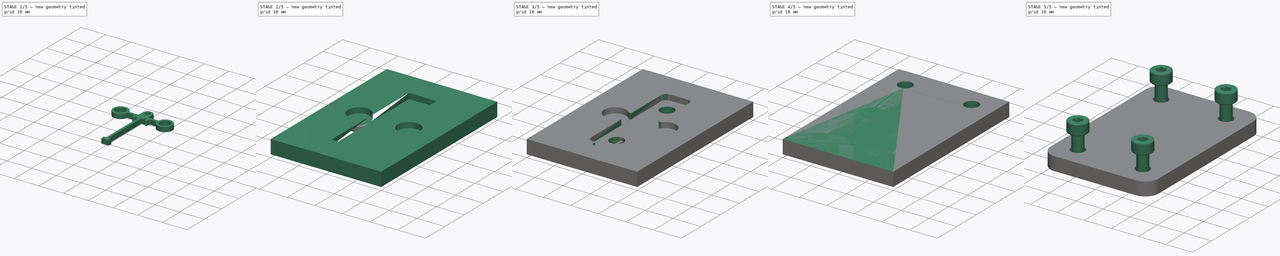
[diagram: build sequence overview — one tinted view per stage of 5, left to right]
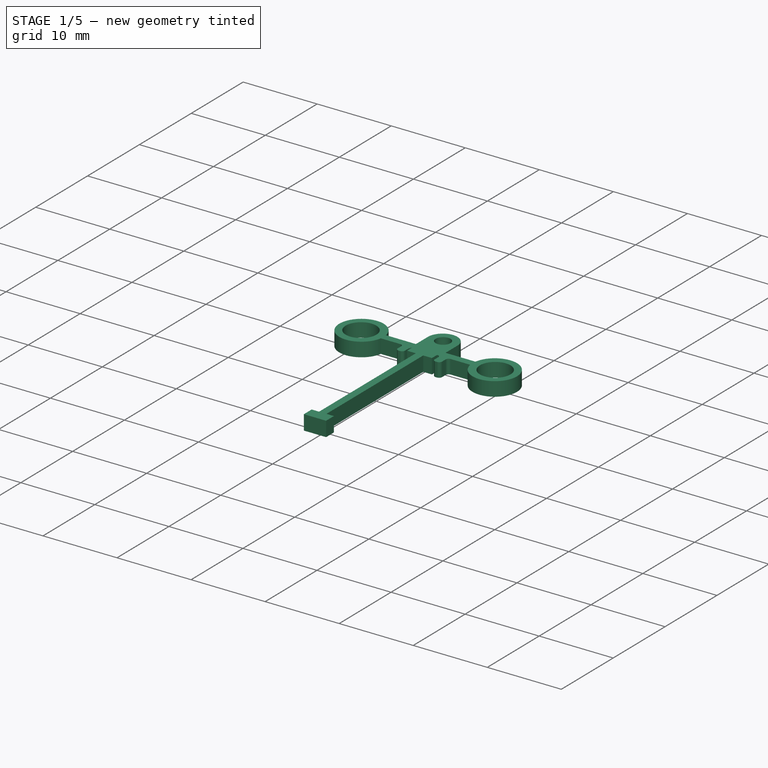
[diagram: stage 1 of 5 — iso view after this stage's code; geometry added in this stage tinted green]
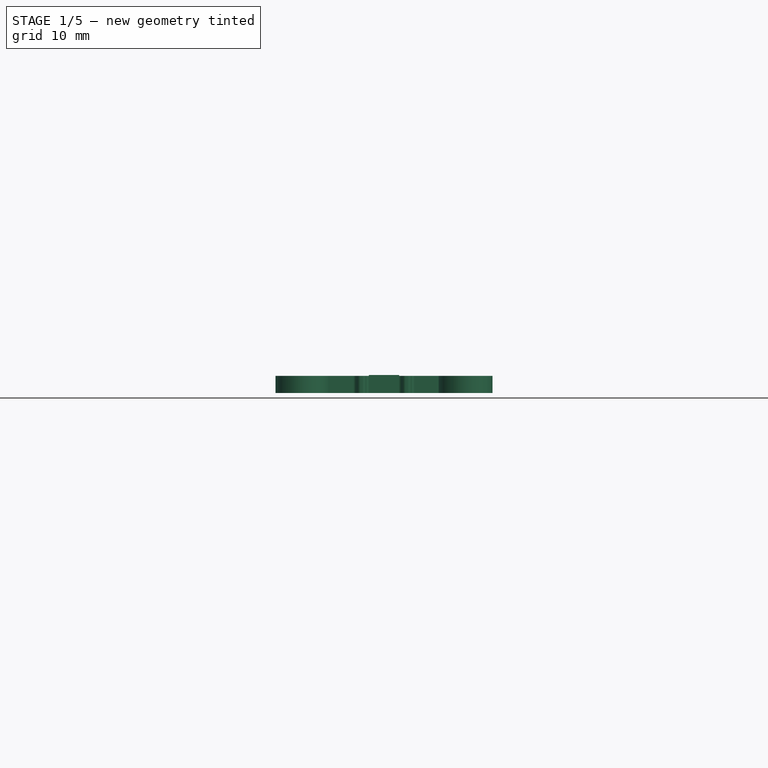
[diagram: stage 1 of 5 — front view after this stage's code; geometry added in this stage tinted green]
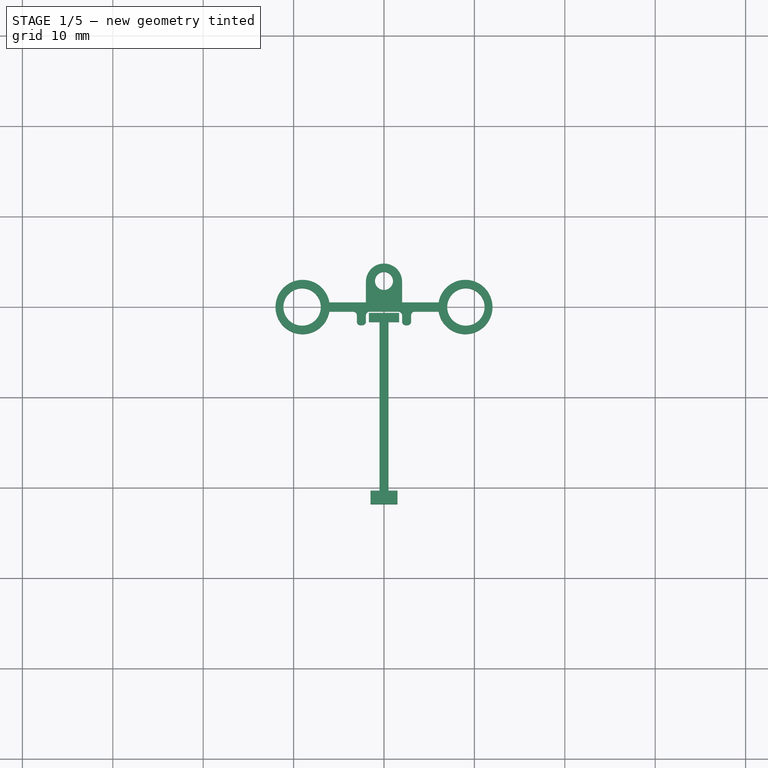
[diagram: stage 1 of 5 — top view after this stage's code; geometry added in this stage tinted green]
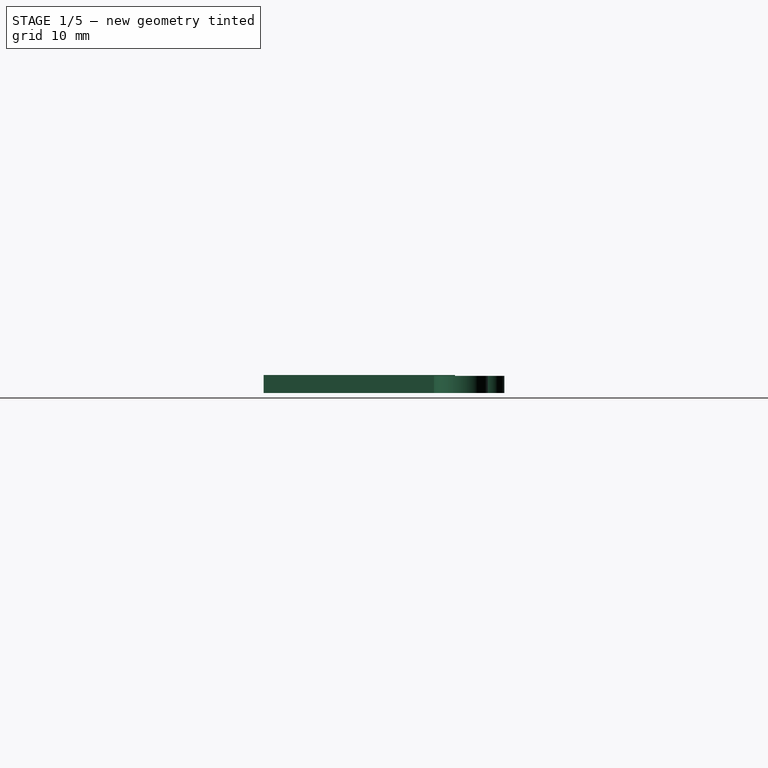
[diagram: stage 1 of 5 — right view after this stage's code; geometry added in this stage tinted green]
FCSTD DOCUMENT  (FreeCAD 0.19R24415 (Git))
Label: tiny_flow_meter
License: All rights reserved
LicenseURL: http://en.wikipedia.org/wiki/All_rights_reserved
objects: Sketcher::SketchObject×14, PartDesign::Pocket×12, PartDesign::Fillet×6, PartDesign::Pad×4, Part::FeaturePython×4, PartDesign::Body×4, PartDesign::Mirrored×2
note: 68 computed .brp shape members not serialized (recipe doc carries the construction recipe); baked Part::Feature solids carry a one-line shape summary decoded from their .brp

FEATURE [Sketcher::SketchObject] Sketch007
  FullyConstrained = true
  MapMode = 5
  Support = -> [XY_Plane001]
  sketch-geometry (16):
    g0: ArcOfCircle CenterX=9 CenterY=-7e-16 CenterZ=0 NormalX=0 NormalY=0 NormalZ=1 AngleXU=0 Radius=3 StartAngle=3.30904 EndAngle=9.25733
    g1: ArcOfCircle CenterX=-9 CenterY=-7e-16 CenterZ=0 NormalX=0 NormalY=0 NormalZ=1 AngleXU=0 Radius=3 StartAngle=0.167448 EndAngle=6.11574
    g2: LineSegment StartX=-6.04196 StartY=0.5 StartZ=0 EndX=-1.9996 EndY=0.5 EndZ=0
    g3: LineSegment StartX=-6.04196 StartY=-0.5 StartZ=0 EndX=-3 EndY=-0.5 EndZ=0
    g4: LineSegment StartX=-3 StartY=-0.5 StartZ=0 EndX=-3 EndY=-2 EndZ=0
    g5: LineSegment StartX=-3 StartY=-2 StartZ=0 EndX=-2 EndY=-2 EndZ=0
    g6: LineSegment StartX=-2 StartY=-2 StartZ=0 EndX=-2 EndY=-0.5 EndZ=0
    g7: LineSegment StartX=2 StartY=-0.5 StartZ=0 EndX=2 EndY=-2 EndZ=0
    g8: LineSegment StartX=2 StartY=-2 StartZ=0 EndX=3 EndY=-2 EndZ=0
    g9: LineSegment StartX=3 StartY=-2 StartZ=0 EndX=3 EndY=-0.5 EndZ=0
    g10: LineSegment StartX=-2 StartY=-0.5 StartZ=0 EndX=2 EndY=-0.5 EndZ=0
    g11: LineSegment StartX=3 StartY=-0.5 StartZ=0 EndX=6.04196 EndY=-0.5 EndZ=0
    g12: ArcOfCircle CenterX=0 CenterY=2.8 CenterZ=0 NormalX=0 NormalY=0 NormalZ=1 AngleXU=0 Radius=2 StartAngle=0.0200013 EndAngle=3.12159
    g13: LineSegment StartX=-1.9996 StartY=2.84 StartZ=0 EndX=-1.9996 EndY=0.5 EndZ=0
    g14: LineSegment StartX=1.9996 StartY=2.84 StartZ=0 EndX=1.9996 EndY=0.5 EndZ=0
    g15: LineSegment StartX=1.9996 StartY=0.5 StartZ=0 EndX=6.04196 EndY=0.5 EndZ=0
  constraints (47):
    c: Diameter(g0) = 6
    c: Equal(g1,g0)
    c: Symmetric(g1,g0,g-2)
    c: DistanceX(g-1,g0) = 9
    c: Horizontal(g2)
    c: Horizontal(g3)
    c: Vertical(g4)
    c: Coincident(g5,g4)
    c: Horizontal(g5)
    c: Coincident(g6,g5)
    c: Vertical(g6)
    c: Vertical(g7)
    c: Coincident(g8,g7)
    c: Horizontal(g8)
    c: Coincident(g9,g8)
    c: PointOnObject(g9,g3)
    c: Vertical(g9)
    c: DistanceX(g5,g5) = 1
    c: Equal(g5,g8)
    c: DistanceY(g9,g9) = 1.5
    c: Equal(g9,g4)
    c: Symmetric(g6,g7,g-2)
    c: DistanceX(g5,g7) = 4
    c: Coincident(g3,g4)
    c: Coincident(g10,g6)
    c: Tangent(g3,g10)
    c: PointOnObject(g10,g7)
    c: PointOnObject(g11,g9)
    c: Tangent(g10,g11)
    c: Symmetric(g2,g3,g-1)
    c: Coincident(g1,g2)
    c: Coincident(g1,g3)
    c: Coincident(g0,g11)
    c: Coincident(g0,g15)
    c: DistanceY(g0,g0) = 1
    c: PointOnObject(g12,g-2)
    c: Diameter(g12) = 4
    c: DistanceY(g-1,g12) = 2.8
    c: Vertical(g13)
    c: Vertical(g14)
    c: Equal(g13,g14)
    c: Coincident(g12,g14)
    c: Coincident(g12,g13)
    c: DistanceY(g14,g14) = 2.34
    c: Coincident(g2,g13)
    c: Coincident(g15,g14)
    c: Tangent(g2,g15)
FEATURE [PartDesign::Pad] Pad001
  Direction = (1,1,1)
  Length = 2
  Length2 = 100
  Profile = -> Sketch007
  Type = 0
FEATURE [Sketcher::SketchObject] Sketch008
  FullyConstrained = true
  MapMode = 5
  Placement = pos=(0,0,2) rot=(0,0,1;0rad)
  Support = -> [Pad001]
  sketch-geometry (1):
    g0: Circle CenterX=0 CenterY=2.88 CenterZ=0 NormalX=0 NormalY=0 NormalZ=1 AngleXU=0 Radius=1
  constraints (3):
    c: PointOnObject(g0,g-2)
    c: Diameter(g0) = 2
    c: DistanceY(g-1,g0) = 2.88
FEATURE [PartDesign::Pocket] Pocket006
  BaseFeature = -> Pad001
  Length = 5
  Length2 = 100
  Profile = -> Sketch008
  Type = 0
FEATURE [Sketcher::SketchObject] Sketch009
  FullyConstrained = true
  MapMode = 5
  Support = -> [XY_Plane002]
  sketch-geometry (12):
    g0: LineSegment StartX=-1.675 StartY=-0.66 StartZ=0 EndX=1.675 EndY=-0.66 EndZ=0
    g1: LineSegment StartX=-1.675 StartY=-0.66 StartZ=0 EndX=-1.675 EndY=-1.66 EndZ=0
    g2: LineSegment StartX=1.675 StartY=-0.66 StartZ=0 EndX=1.675 EndY=-1.66 EndZ=0
    g3: LineSegment StartX=-0.5 StartY=-1.66 StartZ=0 EndX=-0.5 EndY=-20.32 EndZ=0
    g4: LineSegment StartX=0.5 StartY=-1.66 StartZ=0 EndX=0.5 EndY=-20.32 EndZ=0
    g5: LineSegment StartX=1.675 StartY=-1.66 StartZ=0 EndX=0.5 EndY=-1.66 EndZ=0
    g6: LineSegment StartX=-0.5 StartY=-1.66 StartZ=0 EndX=-1.675 EndY=-1.66 EndZ=0
    g7: LineSegment StartX=-1.5 StartY=-21.82 StartZ=0 EndX=1.5 EndY=-21.82 EndZ=0
    g8: LineSegment StartX=-1.5 StartY=-21.82 StartZ=0 EndX=-1.5 EndY=-20.32 EndZ=0
    g9: LineSegment StartX=1.5 StartY=-21.82 StartZ=0 EndX=1.5 EndY=-20.32 EndZ=0
    g10: LineSegment StartX=-1.5 StartY=-20.32 StartZ=0 EndX=-0.5 EndY=-20.32 EndZ=0
    g11: LineSegment StartX=0.5 StartY=-20.32 StartZ=0 EndX=1.5 EndY=-20.32 EndZ=0
  constraints (33):
    c: Symmetric(g0,g0,g-2)
    c: Coincident(g1,g0)
    c: Vertical(g1)
    c: Coincident(g2,g0)
    c: Vertical(g2)
    c: Equal(g1,g2)
    c: DistanceY(g2,g2) = 1
    c: Vertical(g3)
    c: Vertical(g4)
    c: Coincident(g5,g2)
    c: Coincident(g5,g4)
    c: Horizontal(g5)
    c: Coincident(g6,g3)
    c: Coincident(g6,g1)
    c: DistanceX(g3,g4) = 1
    c: Symmetric(g3,g4,g-2)
    c: Equal(g4,g3)
    c: Symmetric(g7,g7,g-2)
    c: DistanceX(g7,g7) = 3
    c: Coincident(g8,g7)
    c: Vertical(g8)
    c: Coincident(g9,g7)
    c: Vertical(g9)
    c: Coincident(g10,g8)
    c: Horizontal(g10)
    c: Equal(g8,g9)
    c: DistanceY(g9,g9) = 1.5
    c: Coincident(g3,g10)
    c: Coincident(g11,g4)
    c: Coincident(g11,g9)
    c: DistanceY(g0,g-1) = 0.66
    c: DistanceY(g4,g4) = 18.66
    c: DistanceX(g0,g0) = 3.35
FEATURE [PartDesign::Pad] Pad002
  Direction = (1,1,1)
  Length = 2
  Length2 = 100
  Profile = -> Sketch009
  Type = 0
FEATURE [Sketcher::SketchObject] Sketch010
  FullyConstrained = true
  MapMode = 5
  Placement = pos=(0,0,2) rot=(0,0,1;0rad)
  Support = -> [Pocket006]
  sketch-geometry (2):
    g0: Circle CenterX=-9.06 CenterY=0 CenterZ=0 NormalX=0 NormalY=0 NormalZ=1 AngleXU=0 Radius=2.07
    g1: Circle CenterX=9.06 CenterY=0 CenterZ=0 NormalX=0 NormalY=0 NormalZ=1 AngleXU=0 Radius=2.07
  constraints (5):
    c: PointOnObject(g0,g-1)
    c: Symmetric(g0,g1,g-2)
    c: Equal(g0,g1)
    c: Diameter(g1) = 4.14
    c: DistanceX(g-1,g1) = 9.06
FEATURE [PartDesign::Pocket] Pocket007
  BaseFeature = -> Pocket006
  Length = 2
  Length2 = 100
  Profile = -> Sketch010
  Type = 0
FEATURE [PartDesign::Fillet] Fillet002
  Base = -> Pocket007 [Edge44,Edge46,Edge8,Edge48,Edge50,Edge52,Edge54,Edge53]
  BaseFeature = -> Pocket007
  Radius = 0.4
  SupportTransform = false
FEATURE [PartDesign::Body] Body002  label="pivit"
  Group = -> [Sketch009,Pad002,Fillet003,Pocket010]
  Origin = -> Origin002
  Placement = pos=(0,0,3) rot=(0,0,1;0rad)
  Tip = -> Pocket010
FEATURE [PartDesign::Pocket] Pocket011
  BaseFeature = -> Fillet002
  Length = 0.1
  Length2 = 100
  Profile = -> Fillet002 [Face5]
  Type = 0
FEATURE [PartDesign::Body] Body001  label="actor"
  Group = -> [Sketch007,Pad001,Sketch008,Pocket006,Sketch010,Pocket007,Fillet002,Pocket011]
  Origin = -> Origin001
  Placement = pos=(0,0,3) rot=(0,0,1;0rad)
  Tip = -> Pocket011
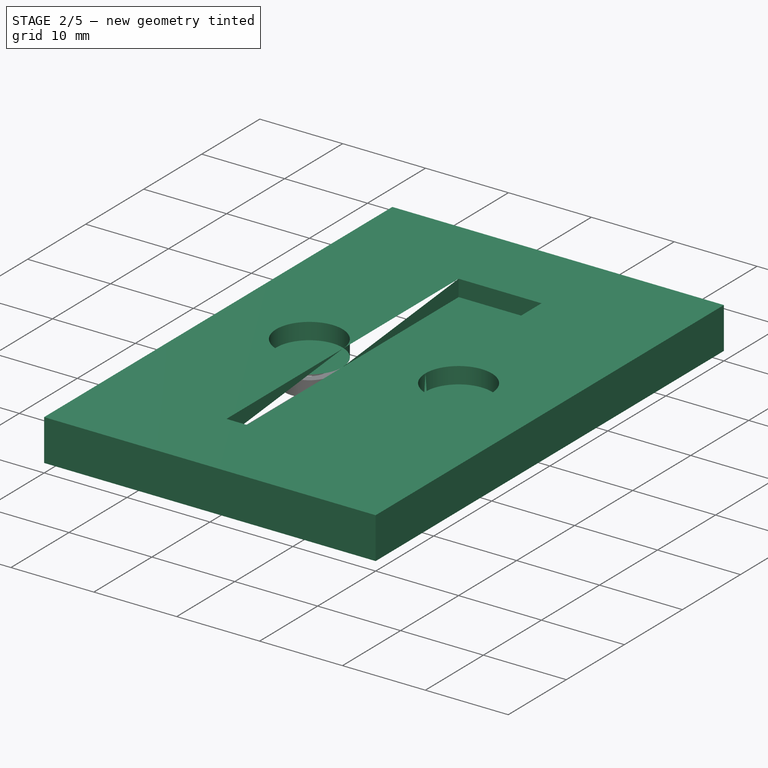
[diagram: stage 2 of 5 — iso view after this stage's code; geometry added in this stage tinted green]
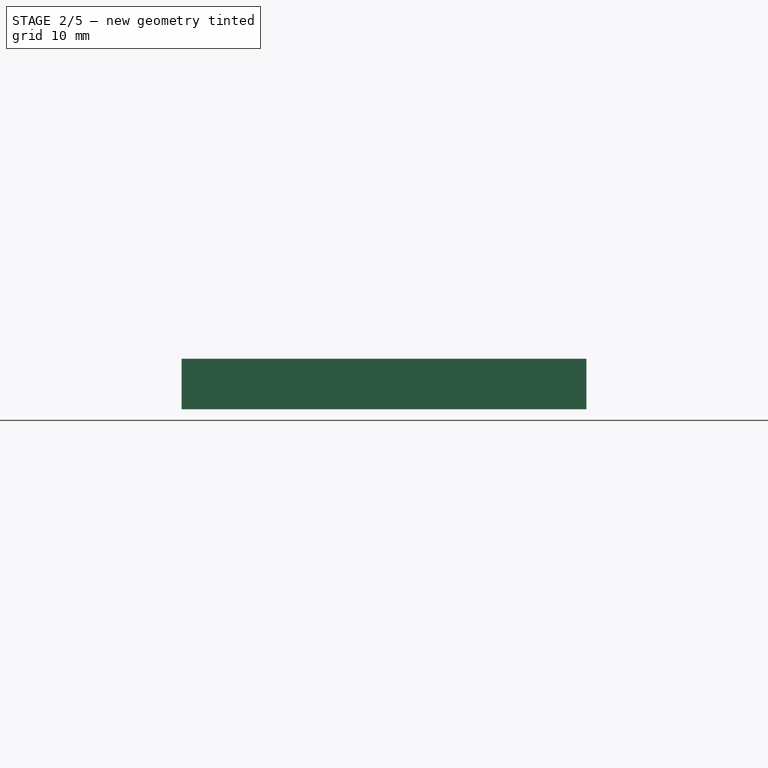
[diagram: stage 2 of 5 — front view after this stage's code; geometry added in this stage tinted green]
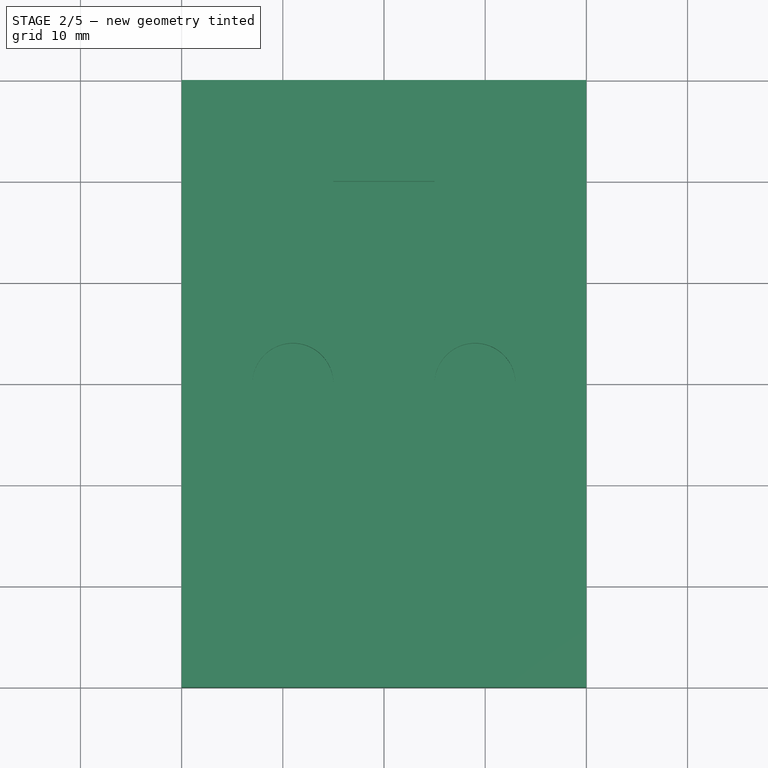
[diagram: stage 2 of 5 — top view after this stage's code; geometry added in this stage tinted green]
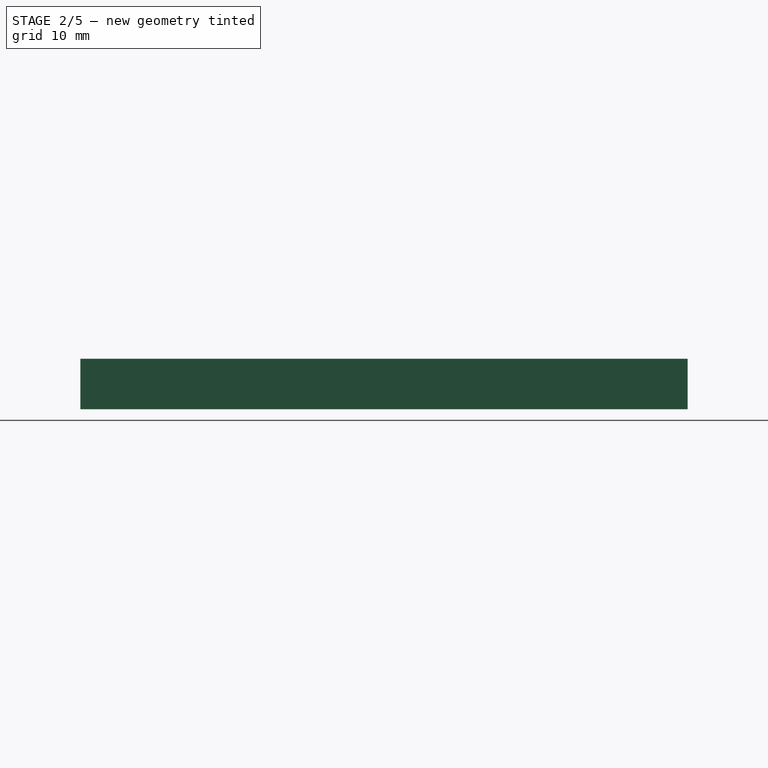
[diagram: stage 2 of 5 — right view after this stage's code; geometry added in this stage tinted green]
FEATURE [Sketcher::SketchObject] Sketch
  FullyConstrained = true
  MapMode = 5
  Support = -> [XY_Plane]
  sketch-geometry (4):
    g0: LineSegment StartX=-20 StartY=30 StartZ=0 EndX=20 EndY=30 EndZ=0
    g1: LineSegment StartX=20 StartY=30 StartZ=0 EndX=20 EndY=-30 EndZ=0
    g2: LineSegment StartX=20 StartY=-30 StartZ=0 EndX=-20 EndY=-30 EndZ=0
    g3: LineSegment StartX=-20 StartY=-30 StartZ=0 EndX=-20 EndY=30 EndZ=0
  constraints (10):
    c: Coincident(g0,g1)
    c: Coincident(g1,g2)
    c: Coincident(g2,g3)
    c: Coincident(g3,g0)
    c: Horizontal(g2)
    c: Vertical(g3)
    c: DistanceY(g1,g1) = 60
    c: DistanceX(g0,g0) = 40
    c: Symmetric(g0,g0,g-2)
    c: Symmetric(g0,g1,g-1)
FEATURE [PartDesign::Pad] Pad
  Direction = (1,1,1)
  Length = 5
  Length2 = 100
  Profile = -> Sketch
  Type = 0
FEATURE [Sketcher::SketchObject] Sketch001
  FullyConstrained = true
  MapMode = 5
  Placement = pos=(0,0,5) rot=(0,0,1;0rad)
  Support = -> [Pad]
  sketch-geometry (4):
    g0: LineSegment StartX=-5 StartY=20 StartZ=0 EndX=5 EndY=20 EndZ=0
    g1: LineSegment StartX=5 StartY=20 StartZ=0 EndX=5 EndY=-20 EndZ=0
    g2: LineSegment StartX=5 StartY=-20 StartZ=0 EndX=-5 EndY=-20 EndZ=0
    g3: LineSegment StartX=-5 StartY=-20 StartZ=0 EndX=-5 EndY=20 EndZ=0
  constraints (10):
    c: Coincident(g0,g1)
    c: Coincident(g1,g2)
    c: Coincident(g2,g3)
    c: Coincident(g3,g0)
    c: Horizontal(g0)
    c: Vertical(g3)
    c: DistanceX(g0,g0) = 10
    c: DistanceY(g1,g1) = 40
    c: Symmetric(g0,g1,g-1)
    c: Symmetric(g1,g2,g-2)
FEATURE [PartDesign::Pocket] Pocket
  BaseFeature = -> Pad
  Length = 2
  Length2 = 100
  Profile = -> Sketch001
  Type = 0
FEATURE [Sketcher::SketchObject] Sketch002
  FullyConstrained = true
  MapMode = 5
  Placement = pos=(0,0,5) rot=(0,0,1;0rad)
  Support = -> [Pocket]
  sketch-geometry (2):
    g0: Circle CenterX=9 CenterY=0 CenterZ=0 NormalX=0 NormalY=0 NormalZ=1 AngleXU=0 Radius=4
    g1: Circle CenterX=-9 CenterY=0 CenterZ=0 NormalX=0 NormalY=0 NormalZ=1 AngleXU=0 Radius=4
  constraints (5):
    c: PointOnObject(g0,g-1)
    c: Equal(g1,g0)
    c: Diameter(g0) = 8
    c: Symmetric(g1,g0,g-2)
    c: DistanceX(g1,g-1) = 9
FEATURE [PartDesign::Pocket] Pocket001
  BaseFeature = -> Pocket
  Length = 2
  Length2 = 100
  Profile = -> Sketch002
  Type = 0
FEATURE [PartDesign::Fillet] Fillet003
  Base = -> Pad002 [Edge2,Edge5,Edge8,Edge11,Edge14,Edge1,Edge32,Edge29,Edge26,Edge23,Edge20,Edge17]
  BaseFeature = -> Pad002
  Radius = 0.4
  SupportTransform = false
FEATURE [PartDesign::Body] Body  label="base"
  Group = -> [Sketch,Pad,Sketch001,Pocket,Sketch002,Pocket001,Sketch003,Pocket002,Sketch004,Pocket003,Sketch005,Pocket004,Sketch006,Pocket005,Fillet,Fillet001,Sketch012,Pocket008,Mirrored,Fillet005]
  Origin = -> Origin
  Tip = -> Fillet005
FEATURE [PartDesign::Pocket] Pocket010
  BaseFeature = -> Fillet003
  Length = 0.1
  Length2 = 100
  Profile = -> Fillet003 [Face5]
  Type = 0
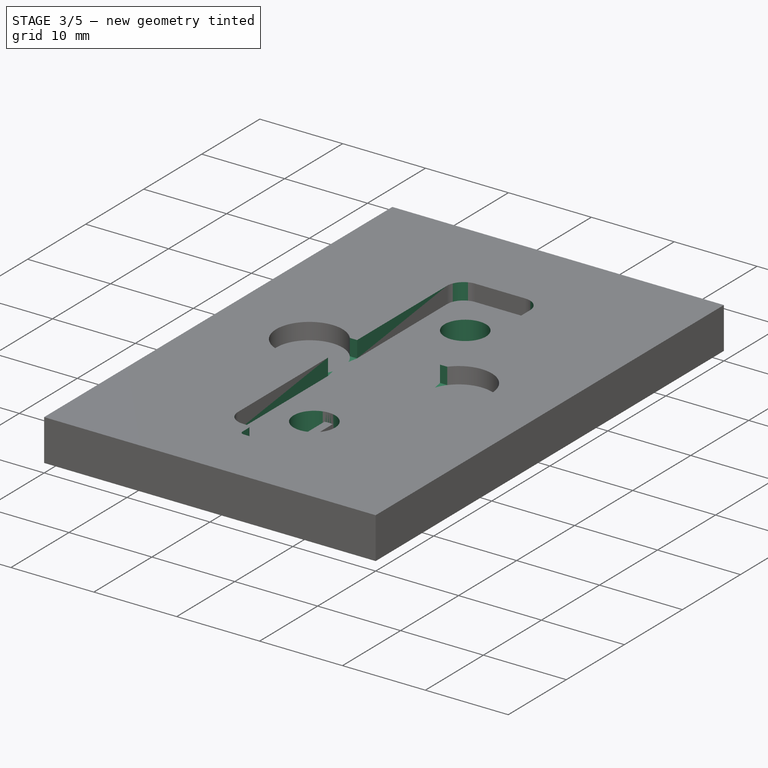
[diagram: stage 3 of 5 — iso view after this stage's code; geometry added in this stage tinted green]
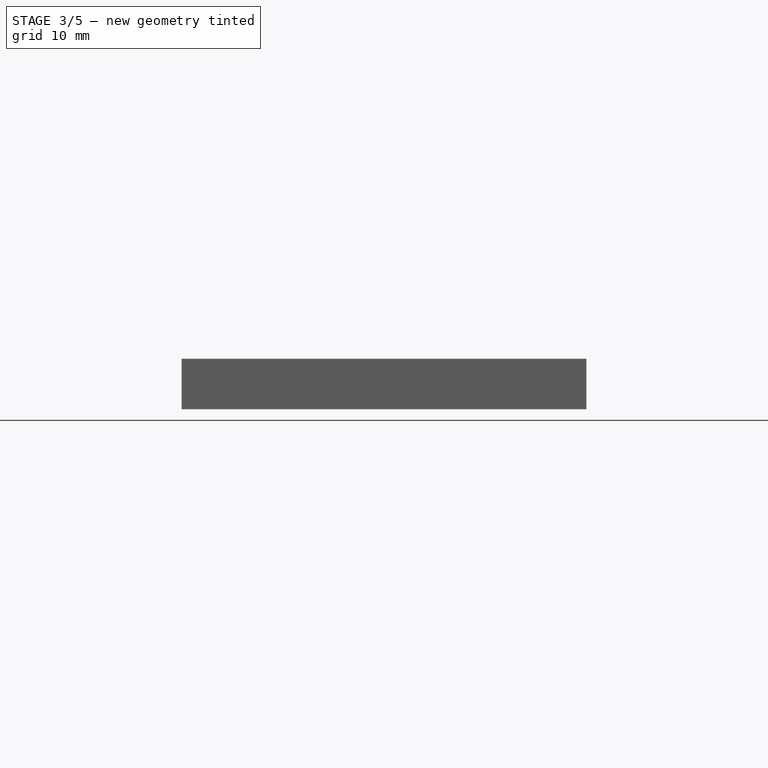
[diagram: stage 3 of 5 — front view after this stage's code; geometry added in this stage tinted green]
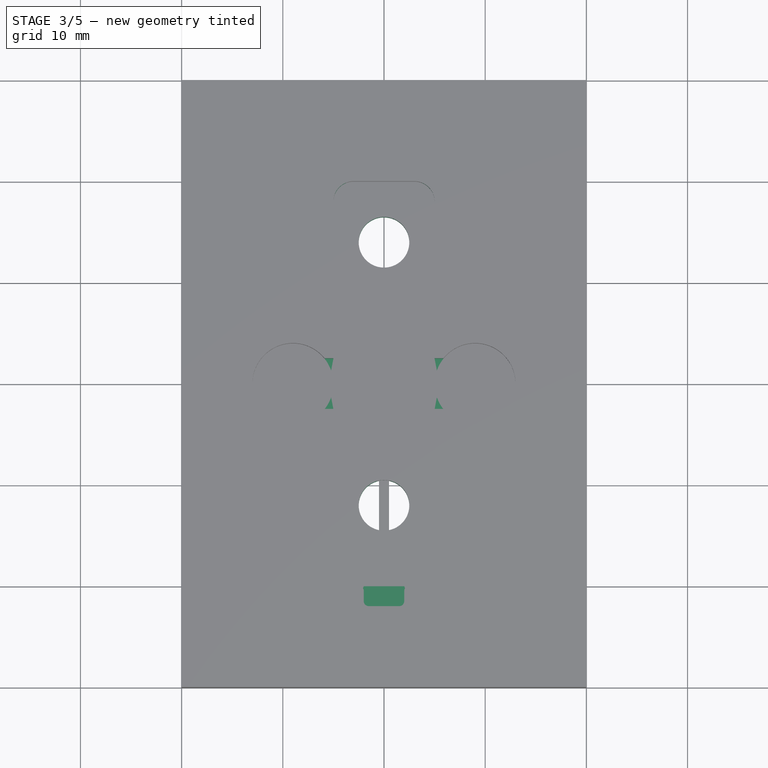
[diagram: stage 3 of 5 — top view after this stage's code; geometry added in this stage tinted green]
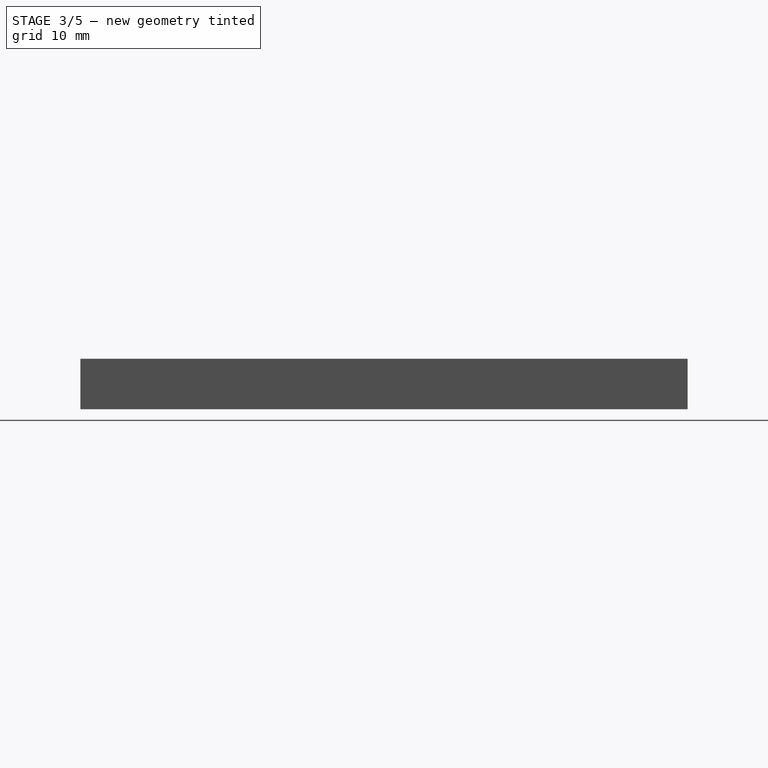
[diagram: stage 3 of 5 — right view after this stage's code; geometry added in this stage tinted green]
FEATURE [Sketcher::SketchObject] Sketch003
  FullyConstrained = true
  MapMode = 5
  Placement = pos=(0,0,5) rot=(0,0,1;0rad)
  Support = -> [Pocket001]
  sketch-geometry (4):
    g0: LineSegment StartX=-7.5 StartY=2.5 StartZ=0 EndX=7.5 EndY=2.5 EndZ=0
    g1: LineSegment StartX=7.5 StartY=2.5 StartZ=0 EndX=7.5 EndY=-2.5 EndZ=0
    g2: LineSegment StartX=7.5 StartY=-2.5 StartZ=0 EndX=-7.5 EndY=-2.5 EndZ=0
    g3: LineSegment StartX=-7.5 StartY=-2.5 StartZ=0 EndX=-7.5 EndY=2.5 EndZ=0
  constraints (10):
    c: Coincident(g0,g1)
    c: Coincident(g1,g2)
    c: Coincident(g2,g3)
    c: Coincident(g3,g0)
    c: Horizontal(g2)
    c: Vertical(g3)
    c: DistanceY(g1,g1) = 5
    c: Symmetric(g0,g1,g-1)
    c: DistanceX(g0,g0) = 15
    c: Symmetric(g0,g0,g-2)
FEATURE [PartDesign::Pocket] Pocket002
  BaseFeature = -> Pocket001
  Length = 2
  Length2 = 100
  Profile = -> Sketch003
  Type = 0
FEATURE [Sketcher::SketchObject] Sketch004
  FullyConstrained = true
  MapMode = 5
  Placement = pos=(0,0,3) rot=(0,0,1;0rad)
  Support = -> [Pocket002]
  sketch-geometry (1):
    g0: Circle CenterX=0 CenterY=-12 CenterZ=0 NormalX=0 NormalY=0 NormalZ=1 AngleXU=0 Radius=2.5
  constraints (3):
    c: PointOnObject(g0,g-2)
    c: Diameter(g0) = 5
    c: DistanceY(g0,g-1) = 12
FEATURE [PartDesign::Pocket] Pocket003
  BaseFeature = -> Pocket002
  Length = 5
  Length2 = 100
  Profile = -> Sketch004
  Type = 0
FEATURE [Sketcher::SketchObject] Sketch005
  FullyConstrained = true
  MapMode = 5
  Placement = pos=(0,0,5) rot=(0,0,1;0rad)
  Support = -> [Pocket003]
  sketch-geometry (4):
    g0: LineSegment StartX=-2 StartY=-18 StartZ=0 EndX=2 EndY=-18 EndZ=0
    g1: LineSegment StartX=2 StartY=-18 StartZ=0 EndX=2 EndY=-22 EndZ=0
    g2: LineSegment StartX=2 StartY=-22 StartZ=0 EndX=-2 EndY=-22 EndZ=0
    g3: LineSegment StartX=-2 StartY=-22 StartZ=0 EndX=-2 EndY=-18 EndZ=0
  constraints (11):
    c: Coincident(g0,g1)
    c: Coincident(g1,g2)
    c: Coincident(g2,g3)
    c: Coincident(g3,g0)
    c: Horizontal(g0)
    c: Vertical(g1)
    c: Vertical(g3)
    c: DistanceX(g2,g2) = 4
    c: Symmetric(g2,g1,g-2)
    c: Equal(g2,g1)
    c: DistanceY(g0,g-1) = 18
FEATURE [PartDesign::Pocket] Pocket004
  BaseFeature = -> Pocket003
  Length = 2
  Length2 = 100
  Profile = -> Sketch005
  Type = 0
FEATURE [Sketcher::SketchObject] Sketch006
  FullyConstrained = true
  MapMode = 5
  Placement = pos=(0,0,3) rot=(0,0,1;0rad)
  Support = -> [Pocket004]
  sketch-geometry (1):
    g0: Circle CenterX=0 CenterY=14 CenterZ=0 NormalX=0 NormalY=0 NormalZ=1 AngleXU=0 Radius=2.5
  constraints (3):
    c: PointOnObject(g0,g-2)
    c: Diameter(g0) = 5
    c: DistanceY(g-1,g0) = 14
FEATURE [PartDesign::Pocket] Pocket005
  BaseFeature = -> Pocket004
  Length = 3
  Length2 = 100
  Profile = -> Sketch006
  Type = 0
FEATURE [PartDesign::Fillet] Fillet
  Base = -> Pocket005 [Edge59,Edge61,Edge49,Edge39]
  BaseFeature = -> Pocket005
  Radius = 2
  SupportTransform = false
FEATURE [PartDesign::Fillet] Fillet001
  Base = -> Fillet [Edge41,Edge37,Edge33,Edge45]
  BaseFeature = -> Fillet
  Radius = 0.5
  SupportTransform = false
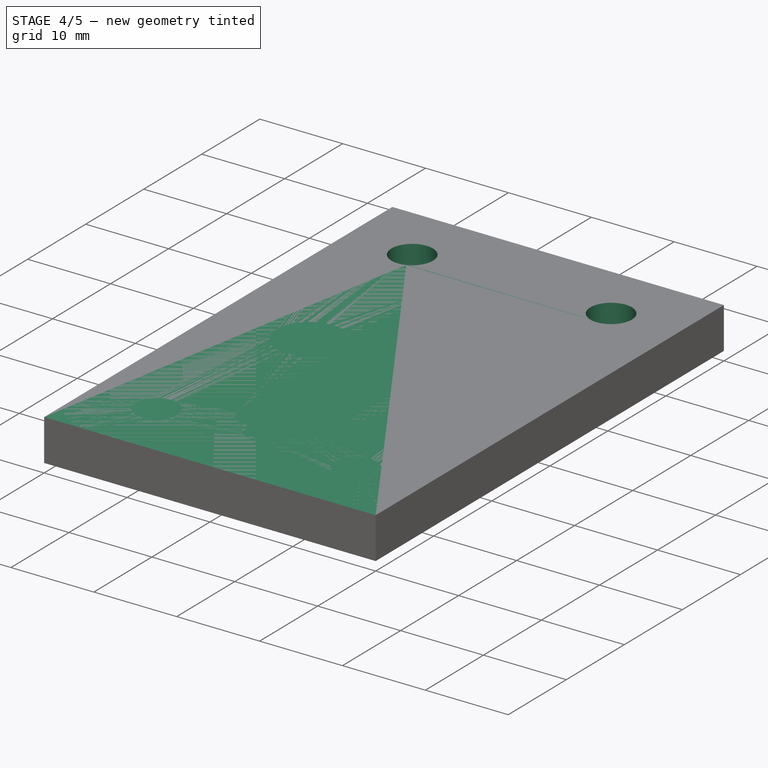
[diagram: stage 4 of 5 — iso view after this stage's code; geometry added in this stage tinted green]
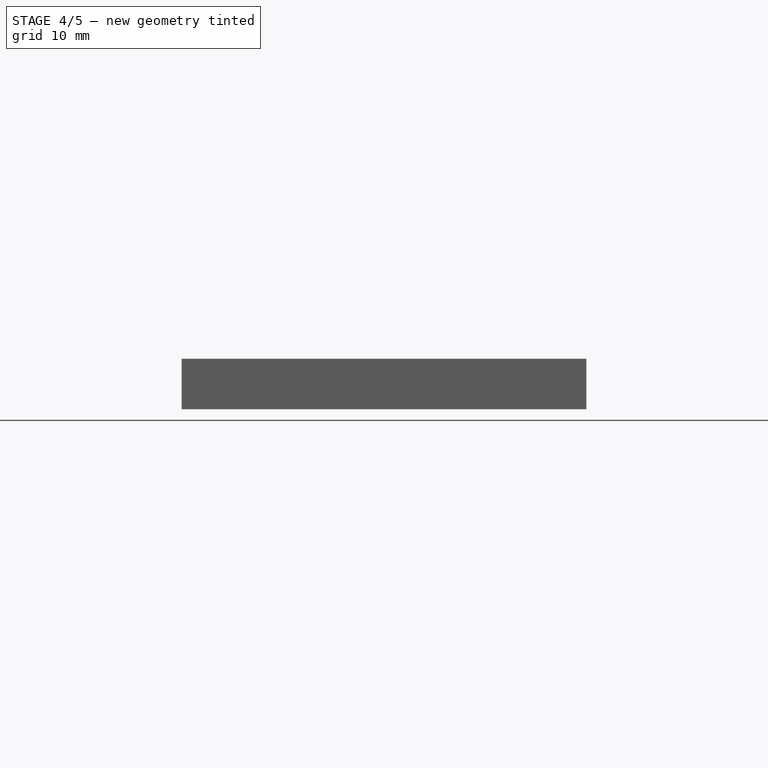
[diagram: stage 4 of 5 — front view after this stage's code; geometry added in this stage tinted green]
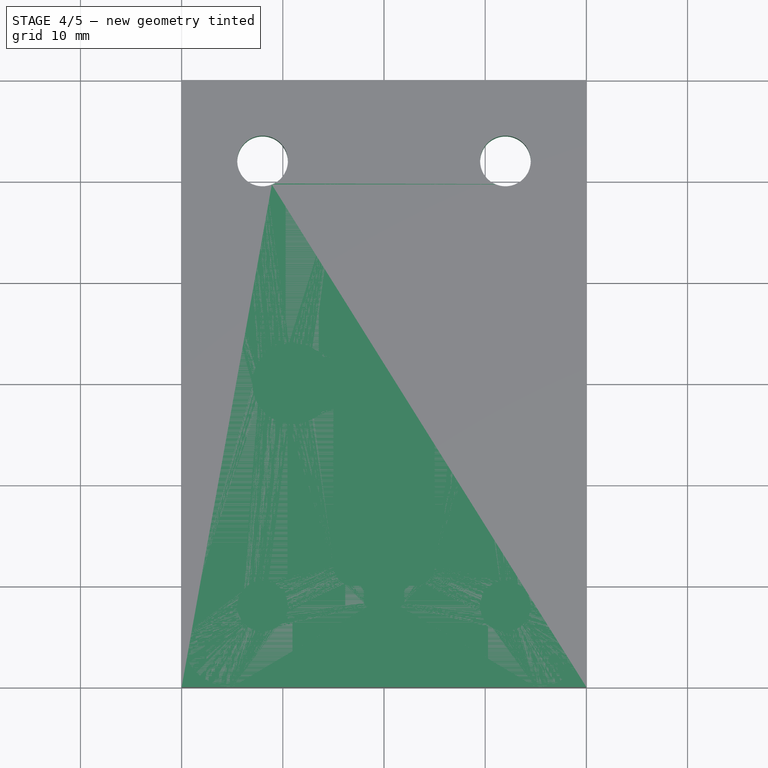
[diagram: stage 4 of 5 — top view after this stage's code; geometry added in this stage tinted green]
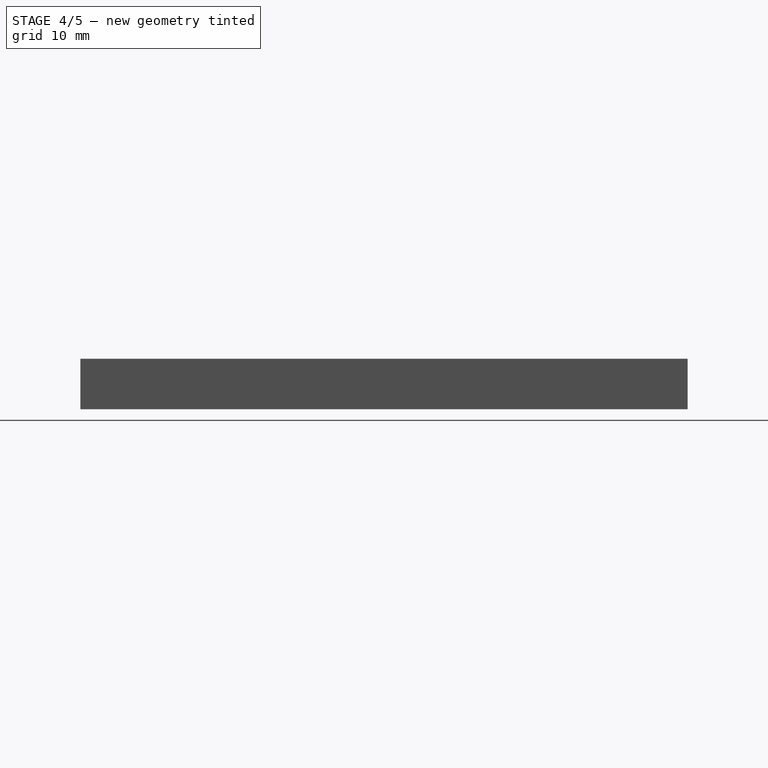
[diagram: stage 4 of 5 — right view after this stage's code; geometry added in this stage tinted green]
FEATURE [Sketcher::SketchObject] Sketch011
  FullyConstrained = true
  MapMode = 5
  sketch-geometry (4):
    g0: LineSegment StartX=-20 StartY=30 StartZ=0 EndX=20 EndY=30 EndZ=0
    g1: LineSegment StartX=20 StartY=30 StartZ=0 EndX=20 EndY=-30 EndZ=0
    g2: LineSegment StartX=20 StartY=-30 StartZ=0 EndX=-20 EndY=-30 EndZ=0
    g3: LineSegment StartX=-20 StartY=-30 StartZ=0 EndX=-20 EndY=30 EndZ=0
  constraints (10):
    c: Coincident(g0,g1)
    c: Coincident(g1,g2)
    c: Coincident(g2,g3)
    c: Coincident(g3,g0)
    c: Horizontal(g2)
    c: Vertical(g3)
    c: DistanceY(g1,g1) = 60
    c: DistanceX(g0,g0) = 40
    c: Symmetric(g0,g0,g-2)
    c: Symmetric(g0,g1,g-1)
FEATURE [PartDesign::Pad] Pad003
  Direction = (1,1,1)
  Length = 5
  Length2 = 100
  Profile = -> Sketch011
  Type = 0
FEATURE [Sketcher::SketchObject] Sketch012
  FullyConstrained = true
  MapMode = 5
  Placement = pos=(0,0,5) rot=(0,0,1;0rad)
  Support = -> [Fillet001]
  sketch-geometry (2):
    g0: Circle CenterX=-12 CenterY=22 CenterZ=0 NormalX=0 NormalY=0 NormalZ=1 AngleXU=0 Radius=2.5
    g1: Circle CenterX=12 CenterY=22 CenterZ=0 NormalX=0 NormalY=0 NormalZ=1 AngleXU=0 Radius=2.5
  constraints (5):
    c: Diameter(g0) = 5
    c: DistanceY(g-1,g0) = 22
    c: DistanceX(g0,g-1) = 12
    c: Equal(g0,g1)
    c: Symmetric(g1,g0,g-2)
FEATURE [PartDesign::Pocket] Pocket008
  BaseFeature = -> Fillet001
  Length = 5
  Length2 = 100
  Profile = -> Sketch012
  Type = 0
FEATURE [PartDesign::Mirrored] Mirrored
  BaseFeature = -> Pocket008
  MirrorPlane = -> XZ_Plane
  Originals = -> [Pocket008]
FEATURE [Sketcher::SketchObject] Sketch017
  FullyConstrained = true
  MapMode = 5
  Placement = pos=(0,0,5) rot=(0,0,1;0rad)
  Support = -> [Pad003]
  sketch-geometry (2):
    g0: Circle CenterX=-12 CenterY=22 CenterZ=0 NormalX=0 NormalY=0 NormalZ=1 AngleXU=0 Radius=2.5
    g1: Circle CenterX=12 CenterY=22 CenterZ=0 NormalX=0 NormalY=0 NormalZ=1 AngleXU=0 Radius=2.5
  constraints (5):
    c: Diameter(g0) = 5
    c: DistanceY(g-1,g0) = 22
    c: DistanceX(g0,g-1) = 12
    c: Equal(g0,g1)
    c: Symmetric(g1,g0,g-2)
FEATURE [PartDesign::Pocket] Pocket009
  BaseFeature = -> Pad003
  Length = 5
  Length2 = 100
  Profile = -> Sketch017
  Type = 0
FEATURE [PartDesign::Body] Body003  label="top"
  Group = -> [Sketch011,Pad003,Sketch017,Pocket009,Mirrored001,Fillet004]
  Origin = -> Origin003
  Placement = pos=(0,0,5) rot=(0,0,1;0rad)
  Tip = -> Fillet004
FEATURE [PartDesign::Fillet] Fillet005
  Base = -> Mirrored [Edge37,Edge39,Edge34,Edge35]
  BaseFeature = -> Mirrored
  Radius = 5
  SupportTransform = false
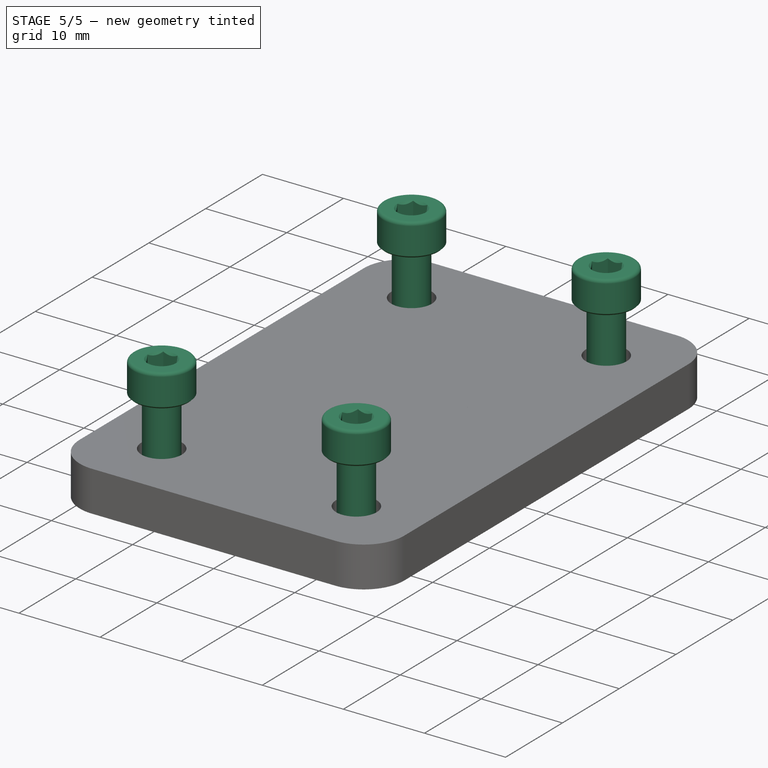
[diagram: stage 5 of 5 — iso view after this stage's code; geometry added in this stage tinted green]
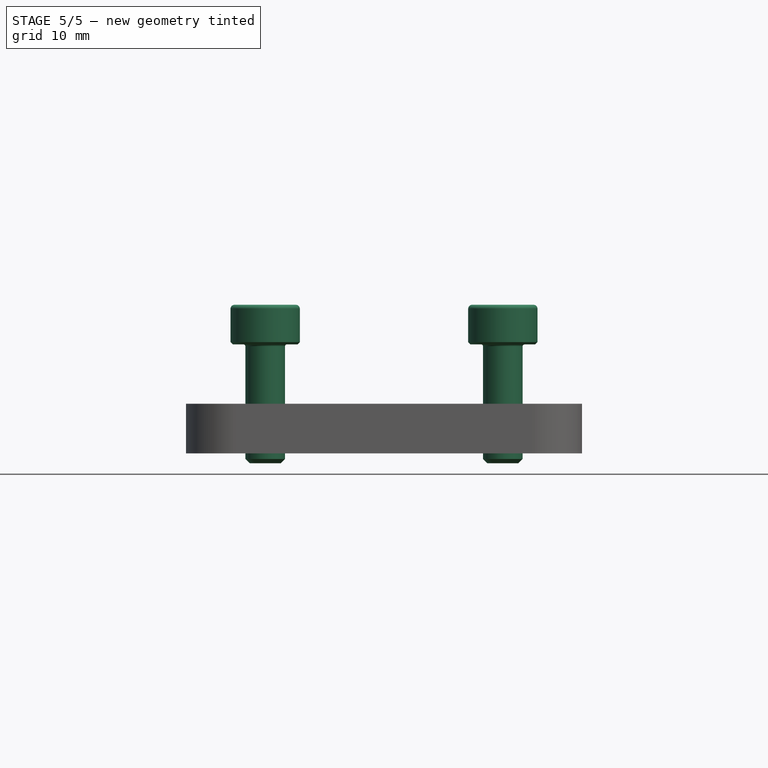
[diagram: stage 5 of 5 — front view after this stage's code; geometry added in this stage tinted green]
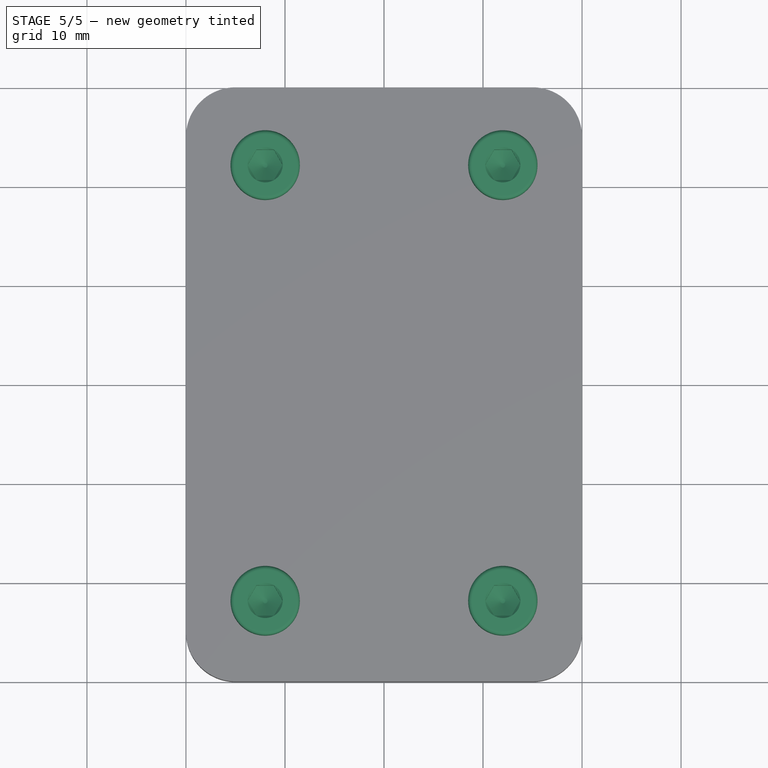
[diagram: stage 5 of 5 — top view after this stage's code; geometry added in this stage tinted green]
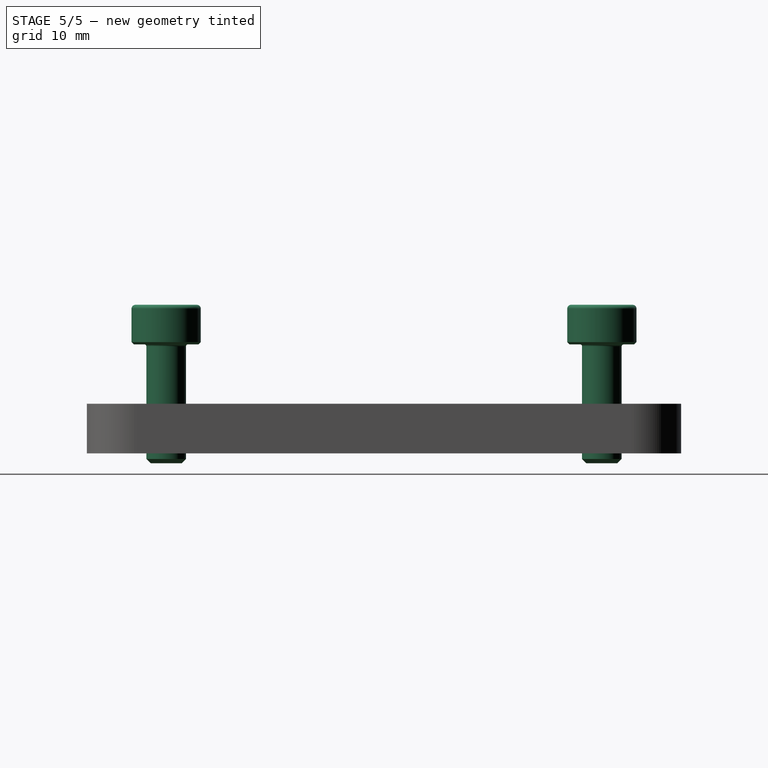
[diagram: stage 5 of 5 — right view after this stage's code; geometry added in this stage tinted green]
FEATURE [PartDesign::Mirrored] Mirrored001
  BaseFeature = -> Pocket009
  MirrorPlane = -> XZ_Plane003
  Originals = -> [Pocket009]
FEATURE [Part::FeaturePython] Screw  label="M4x12-Screw"  # Fasteners workbench fastener (typed FeaturePython)
  Placement = pos=(-12,22,11) rot=(0,0,1;0rad)
  diameter = 5
  invert = false
  length = 3
  lengthCustom = 12
  matchOuter = false
  offset = 0
  thread = false
  type = 32
FEATURE [Part::FeaturePython] Screw001  label="M4x12-Screw007"  # Fasteners workbench fastener (typed FeaturePython)
  Placement = pos=(12,-22,11) rot=(0,0,1;0rad)
  diameter = 5
  invert = false
  length = 3
  lengthCustom = 12
  matchOuter = false
  offset = 0
  thread = false
  type = 32
FEATURE [Part::FeaturePython] Screw002  label="M4x12-Screw008"  # Fasteners workbench fastener (typed FeaturePython)
  Placement = pos=(12,22,11) rot=(0,0,1;0rad)
  diameter = 5
  invert = false
  length = 3
  lengthCustom = 12
  matchOuter = false
  offset = 0
  thread = false
  type = 32
FEATURE [Part::FeaturePython] Screw003  label="M4x12-Screw006"  # Fasteners workbench fastener (typed FeaturePython)
  Placement = pos=(-12,-22,11) rot=(0,0,1;0rad)
  diameter = 5
  invert = false
  length = 3
  lengthCustom = 12
  matchOuter = false
  offset = 0
  thread = false
  type = 32
FEATURE [PartDesign::Fillet] Fillet004
  Base = -> Mirrored001 [Edge2,Edge1,Edge5,Edge8]
  BaseFeature = -> Mirrored001
  Radius = 5
  SupportTransform = false
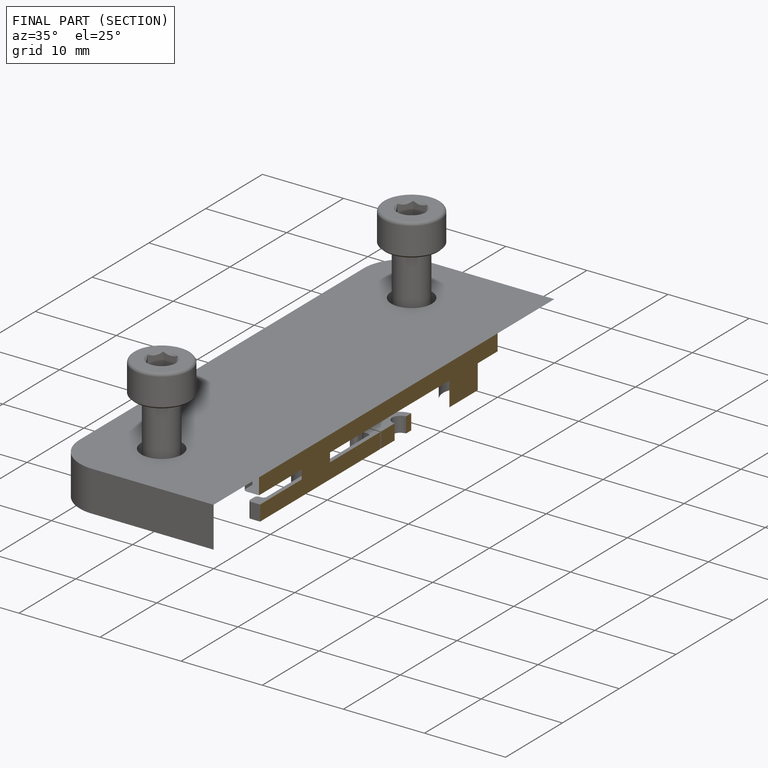
[diagram: finished part — half-section view (interior)]
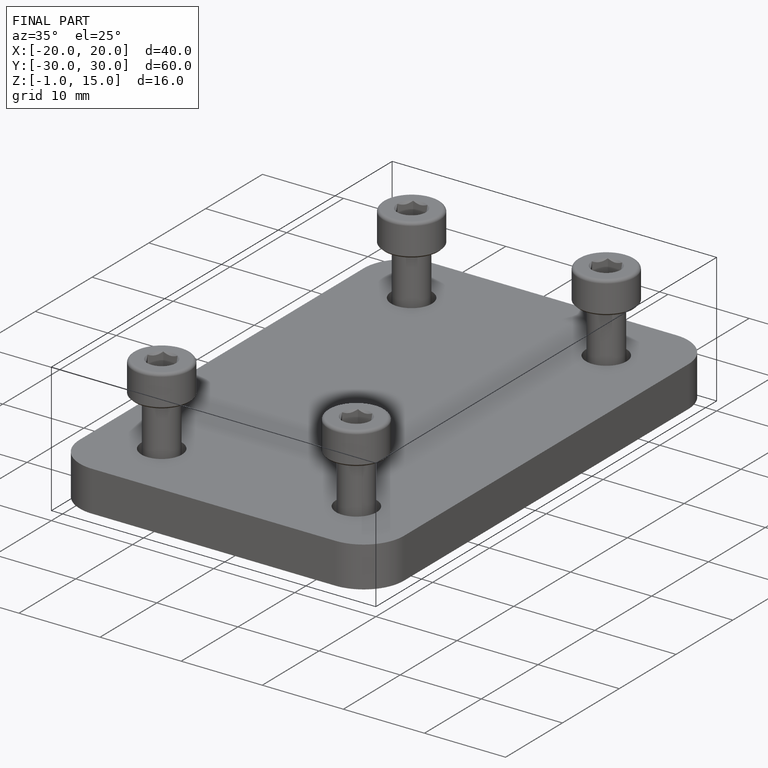
[diagram: finished part — iso view with bounding-box wireframe]
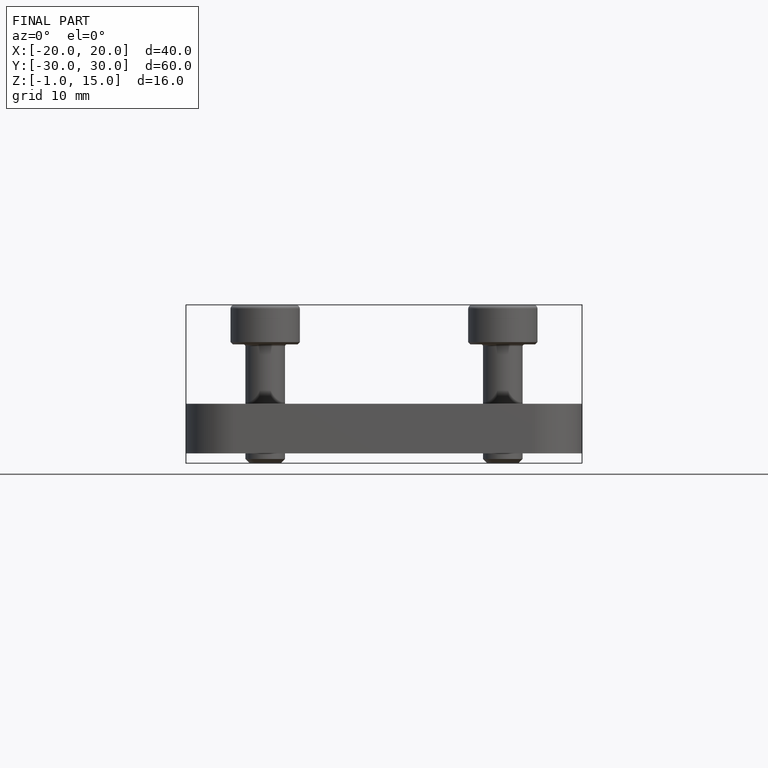
[diagram: finished part — front view with bounding-box wireframe]
